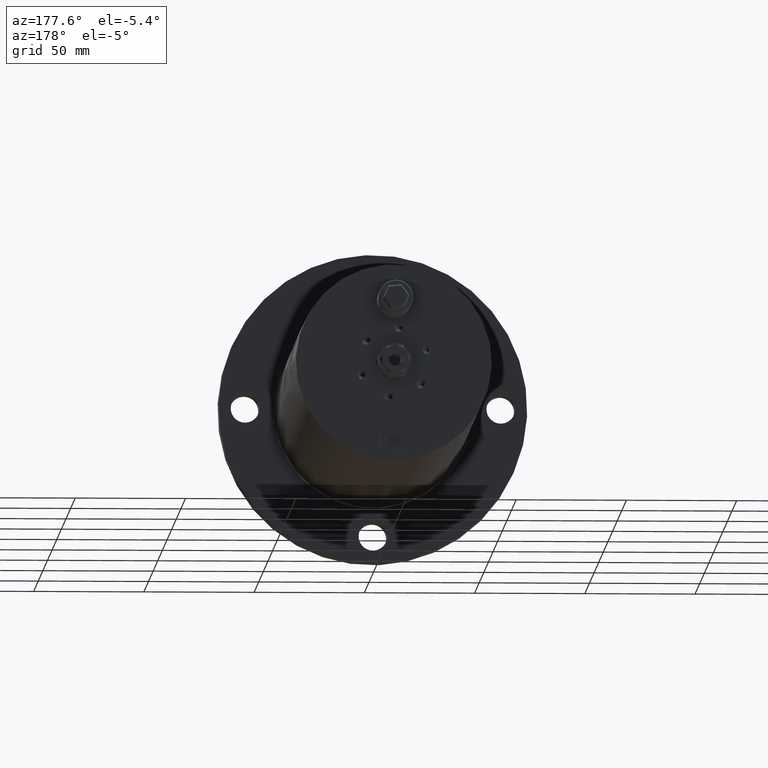
[diagram: clean part render]
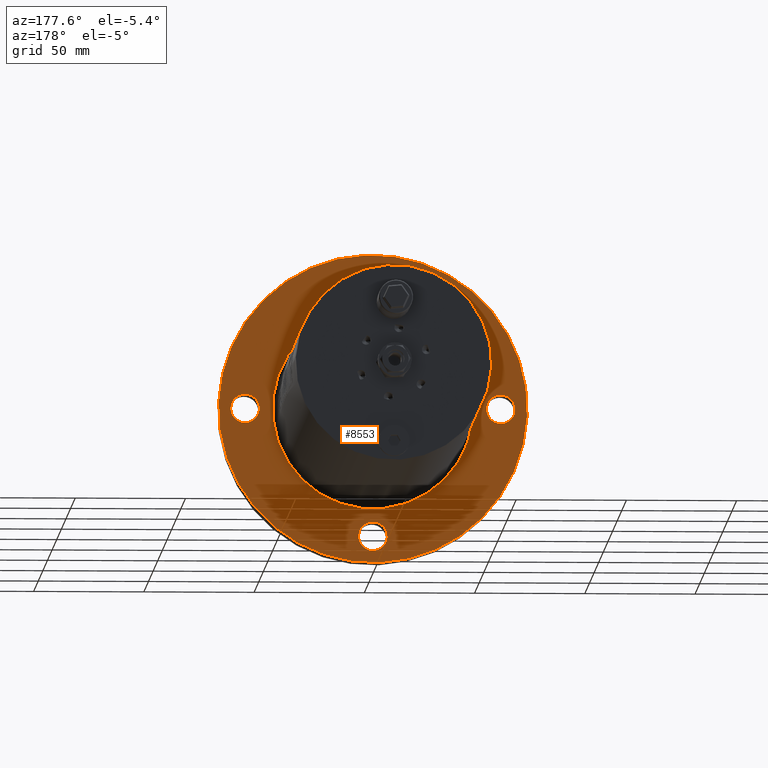
[diagram: same view with one face highlighted and labeled with its STEP entity id]
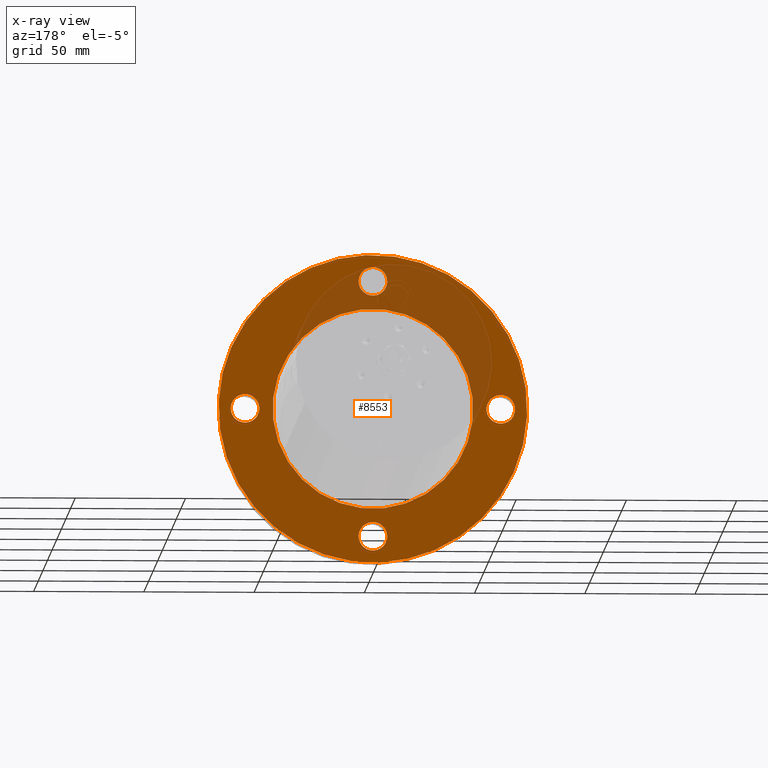
[diagram: x-ray of the same camera — body ghosted, the highlighted face saturated]
A machine part, auxiliary view. The second image highlights one B-rep face of the part: STEP entity #8553.
The next image is the same camera in x-ray: the body ghosted, the highlighted face saturated — about 22% of this face is hidden behind the body in this view.
In plain terms, the highlighted planar face has unit normal (0, 1, -0).
Its self-contained STEP definition (entity closure, byte-faithful):
#50 = ORIENTED_EDGE ( 'NONE', *, *, #286, .F. ) ;
#286 = EDGE_CURVE ( 'NONE', #27977, #27420, #34987, .T. ) ;
#388 = VERTEX_POINT ( 'NONE', #16645 ) ;
#473 = EDGE_LOOP ( 'NONE', ( #21005, #12695 ) ) ;
#733 = DIRECTION ( 'NONE',  ( -0.7071067811865529000, 2.813668456804866500E-016, -0.7071067811865422400 ) ) ;
#1062 = CARTESIAN_POINT ( 'NONE',  ( -53.40380592228689900, -6.999999999999988500, 4.596194077713342100 ) ) ;
#1196 = EDGE_CURVE ( 'NONE', #19824, #8048, #7561, .T. ) ;
#1564 = CIRCLE ( 'NONE', #15008, 45.50000000000000700 ) ;
#1895 = EDGE_CURVE ( 'NONE', #34414, #25639, #4901, .T. ) ;
#1982 = CARTESIAN_POINT ( 'NONE',  ( 62.59619407771310800, -7.000000000000040900, 4.596194077712090700 ) ) ;
#2097 = CIRCLE ( 'NONE', #3692, 6.499999999999991100 ) ;
#2374 = DIRECTION ( 'NONE',  ( -0.7071067811865533500, 2.668805347656625700E-016, -0.7071067811865418000 ) ) ;
#2727 = AXIS2_PLACEMENT_3D ( 'NONE', #17751, #32100, #733 ) ;
#2873 = DIRECTION ( 'NONE',  ( -4.382831749361561200E-016, -1.000000000000000000, 4.037036577267773700E-017 ) ) ;
#3692 = AXIS2_PLACEMENT_3D ( 'NONE', #9555, #29407, #24697 ) ;
#4862 = VERTEX_POINT ( 'NONE', #14027 ) ;
#4901 = CIRCLE ( 'NONE', #18607, 6.499999999999998200 ) ;
#5383 = DIRECTION ( 'NONE',  ( 4.382831749361561200E-016, 1.000000000000000000, -4.037036577267773700E-017 ) ) ;
#5623 = AXIS2_PLACEMENT_3D ( 'NONE', #9716, #21000, #29561 ) ;
#5908 = CARTESIAN_POINT ( 'NONE',  ( 2.919905554152300800E-013, -7.000000000000015100, -57.99999999999999300 ) ) ;
#6433 = EDGE_CURVE ( 'NONE', #8048, #19824, #28159, .T. ) ;
#6566 = CIRCLE ( 'NONE', #5623, 6.500000000000001800 ) ;
#7272 = CARTESIAN_POINT ( 'NONE',  ( 7.360797652652927500E-013, -7.000000000000011500, 57.99999999999999300 ) ) ;
#7561 = CIRCLE ( 'NONE', #12399, 70.00000000000001400 ) ;
#8048 = VERTEX_POINT ( 'NONE', #12289 ) ;
#8553 = ADVANCED_FACE ( 'NONE', ( #23761, #14445, #30392, #29513, #36126, #28643 ), #20938, .T. ) ;
#8618 = EDGE_CURVE ( 'NONE', #25639, #34414, #18886, .T. ) ;
#8933 = EDGE_CURVE ( 'NONE', #25154, #25238, #34872, .T. ) ;
#9555 = CARTESIAN_POINT ( 'NONE',  ( 2.919905554152300800E-013, -7.000000000000015100, -57.99999999999999300 ) ) ;
#9557 = ORIENTED_EDGE ( 'NONE', *, *, #8933, .F. ) ;
#9612 = CARTESIAN_POINT ( 'NONE',  ( -4.596194077712301200, -7.000000000000013300, -62.59619407771251100 ) ) ;
#9716 = CARTESIAN_POINT ( 'NONE',  ( -57.99999999999949600, -6.999999999999987600, 8.220658157602381300E-013 ) ) ;
#9845 = AXIS2_PLACEMENT_3D ( 'NONE', #12521, #32127, #15143 ) ;
#10026 = CARTESIAN_POINT ( 'NONE',  ( 5.184179920896229100E-013, -7.000000000000013300, -5.968155104952717500E-016 ) ) ;
#10270 = AXIS2_PLACEMENT_3D ( 'NONE', #23438, #34603, #26410 ) ;
#10329 = AXIS2_PLACEMENT_3D ( 'NONE', #16540, #5383, #2374 ) ;
#11294 = CARTESIAN_POINT ( 'NONE',  ( 5.184179920896229100E-013, -7.000000000000013300, -5.968155104952717500E-016 ) ) ;
#11369 = EDGE_CURVE ( 'NONE', #25238, #25154, #6566, .T. ) ;
#11595 = EDGE_LOOP ( 'NONE', ( #29329, #11602 ) ) ;
#11602 = ORIENTED_EDGE ( 'NONE', *, *, #26634, .T. ) ;
#11648 = EDGE_CURVE ( 'NONE', #13944, #12082, #2097, .T. ) ;
#11872 = EDGE_LOOP ( 'NONE', ( #9557, #20324 ) ) ;
#12082 = VERTEX_POINT ( 'NONE', #9612 ) ;
#12289 = CARTESIAN_POINT ( 'NONE',  ( 49.49747468305922400, -7.000000000000031100, 49.49747468305796600 ) ) ;
#12399 = AXIS2_PLACEMENT_3D ( 'NONE', #17171, #2873, #25605 ) ;
#12476 = EDGE_LOOP ( 'NONE', ( #33138, #33805 ) ) ;
#12521 = CARTESIAN_POINT ( 'NONE',  ( 5.184179920896229100E-013, -7.000000000000011500, -5.968155104952719400E-016 ) ) ;
#12695 = ORIENTED_EDGE ( 'NONE', *, *, #1895, .F. ) ;
#12863 = AXIS2_PLACEMENT_3D ( 'NONE', #10026, #24180, #29754 ) ;
#12918 = AXIS2_PLACEMENT_3D ( 'NONE', #7272, #27244, #29738 ) ;
#13944 = VERTEX_POINT ( 'NONE', #21728 ) ;
#14027 = CARTESIAN_POINT ( 'NONE',  ( -32.17335854398763200, -7.000000000000000900, -32.17335854398767500 ) ) ;
#14445 = FACE_BOUND ( 'NONE', #12476, .T. ) ;
#15008 = AXIS2_PLACEMENT_3D ( 'NONE', #11294, #36573, #19626 ) ;
#15143 = DIRECTION ( 'NONE',  ( 0.7071067811865527900, -2.849902853390468200E-016, 0.7071067811865422400 ) ) ;
#16540 = CARTESIAN_POINT ( 'NONE',  ( -57.99999999999949600, -6.999999999999987600, 8.220658157602381300E-013 ) ) ;
#16645 = CARTESIAN_POINT ( 'NONE',  ( 32.17335854398867000, -7.000000000000025800, 32.17335854398768200 ) ) ;
#17171 = CARTESIAN_POINT ( 'NONE',  ( 5.184179920896229100E-013, -7.000000000000011500, -5.968155104952719400E-016 ) ) ;
#17331 = DIRECTION ( 'NONE',  ( -0.7071067811865533500, 2.668805347656630100E-016, -0.7071067811865418000 ) ) ;
#17751 = CARTESIAN_POINT ( 'NONE',  ( -49.49747468305744000, -6.999999999999988500, 49.49747468305870500 ) ) ;
#18607 = AXIS2_PLACEMENT_3D ( 'NONE', #21147, #24252, #32785 ) ;
#18886 = CIRCLE ( 'NONE', #12918, 6.499999999999998200 ) ;
#19626 = DIRECTION ( 'NONE',  ( -0.7071067811865527900, 2.859434301060670700E-016, -0.7071067811865422400 ) ) ;
#19824 = VERTEX_POINT ( 'NONE', #28971 ) ;
#19867 = EDGE_CURVE ( 'NONE', #12082, #13944, #35763, .T. ) ;
#20324 = ORIENTED_EDGE ( 'NONE', *, *, #11369, .F. ) ;
#20938 = PLANE ( 'NONE',  #2727 ) ;
#21000 = DIRECTION ( 'NONE',  ( 4.382831749361561200E-016, 1.000000000000000000, -4.037036577267773700E-017 ) ) ;
#21005 = ORIENTED_EDGE ( 'NONE', *, *, #8618, .F. ) ;
#21147 = CARTESIAN_POINT ( 'NONE',  ( 7.360797652652927500E-013, -7.000000000000011500, 57.99999999999999300 ) ) ;
#21728 = CARTESIAN_POINT ( 'NONE',  ( 4.596194077712882000, -7.000000000000016900, -53.40380592228747500 ) ) ;
#22032 = CARTESIAN_POINT ( 'NONE',  ( 4.596194077713327000, -7.000000000000013300, 62.59619407771252500 ) ) ;
#22875 = CIRCLE ( 'NONE', #10270, 6.499999999999998200 ) ;
#23438 = CARTESIAN_POINT ( 'NONE',  ( 58.00000000000052600, -7.000000000000039100, -4.373434277989239200E-013 ) ) ;
#23761 = FACE_BOUND ( 'NONE', #11595, .T. ) ;
#24180 = DIRECTION ( 'NONE',  ( -4.382831749361561200E-016, -1.000000000000000000, 4.037036577267773700E-017 ) ) ;
#24252 = DIRECTION ( 'NONE',  ( 4.382831749361561200E-016, 1.000000000000000000, -4.037036577267773700E-017 ) ) ;
#24428 = EDGE_CURVE ( 'NONE', #4862, #388, #1564, .T. ) ;
#24474 = DIRECTION ( 'NONE',  ( 4.382831749361561200E-016, 1.000000000000000000, -4.037036577267773700E-017 ) ) ;
#24530 = AXIS2_PLACEMENT_3D ( 'NONE', #24837, #24474, #36076 ) ;
#24697 = DIRECTION ( 'NONE',  ( -0.7071067811865533500, 2.668805347656630100E-016, -0.7071067811865418000 ) ) ;
#24837 = CARTESIAN_POINT ( 'NONE',  ( 58.00000000000052600, -7.000000000000039100, -4.373434277989239200E-013 ) ) ;
#25154 = VERTEX_POINT ( 'NONE', #1062 ) ;
#25238 = VERTEX_POINT ( 'NONE', #35286 ) ;
#25605 = DIRECTION ( 'NONE',  ( 0.7071067811865527900, -2.849902853390468200E-016, 0.7071067811865422400 ) ) ;
#25639 = VERTEX_POINT ( 'NONE', #22032 ) ;
#25765 = DIRECTION ( 'NONE',  ( 4.382831749361561200E-016, 1.000000000000000000, -4.037036577267773700E-017 ) ) ;
#26229 = EDGE_CURVE ( 'NONE', #27420, #27977, #22875, .T. ) ;
#26372 = AXIS2_PLACEMENT_3D ( 'NONE', #5908, #25765, #17331 ) ;
#26410 = DIRECTION ( 'NONE',  ( -0.7071067811865527900, 2.668805347656627200E-016, -0.7071067811865422400 ) ) ;
#26634 = EDGE_CURVE ( 'NONE', #388, #4862, #28648, .T. ) ;
#27206 = ORIENTED_EDGE ( 'NONE', *, *, #6433, .F. ) ;
#27244 = DIRECTION ( 'NONE',  ( 4.382831749361561200E-016, 1.000000000000000000, -4.037036577267773700E-017 ) ) ;
#27420 = VERTEX_POINT ( 'NONE', #1982 ) ;
#27977 = VERTEX_POINT ( 'NONE', #34794 ) ;
#28159 = CIRCLE ( 'NONE', #9845, 70.00000000000001400 ) ;
#28643 = FACE_OUTER_BOUND ( 'NONE', #34166, .T. ) ;
#28648 = CIRCLE ( 'NONE', #12863, 45.50000000000000700 ) ;
#28971 = CARTESIAN_POINT ( 'NONE',  ( -49.49747468305819400, -6.999999999999991100, -49.49747468305795900 ) ) ;
#29329 = ORIENTED_EDGE ( 'NONE', *, *, #24428, .T. ) ;
#29407 = DIRECTION ( 'NONE',  ( 4.382831749361561200E-016, 1.000000000000000000, -4.037036577267773700E-017 ) ) ;
#29430 = CARTESIAN_POINT ( 'NONE',  ( -4.596194077711858000, -7.000000000000009800, 53.40380592228747500 ) ) ;
#29513 = FACE_BOUND ( 'NONE', #473, .T. ) ;
#29561 = DIRECTION ( 'NONE',  ( -0.7071067811865533500, 2.668805347656625700E-016, -0.7071067811865418000 ) ) ;
#29738 = DIRECTION ( 'NONE',  ( -0.7071067811865530100, 2.668805347656627200E-016, -0.7071067811865419100 ) ) ;
#29754 = DIRECTION ( 'NONE',  ( -0.7071067811865527900, 2.859434301060670700E-016, -0.7071067811865422400 ) ) ;
#30204 = EDGE_LOOP ( 'NONE', ( #35648, #50 ) ) ;
#30392 = FACE_BOUND ( 'NONE', #11872, .T. ) ;
#32100 = DIRECTION ( 'NONE',  ( 4.382831749361561200E-016, 1.000000000000000000, -4.037036577267775600E-017 ) ) ;
#32127 = DIRECTION ( 'NONE',  ( -4.382831749361561200E-016, -1.000000000000000000, 4.037036577267773700E-017 ) ) ;
#32785 = DIRECTION ( 'NONE',  ( -0.7071067811865530100, 2.668805347656627200E-016, -0.7071067811865419100 ) ) ;
#33138 = ORIENTED_EDGE ( 'NONE', *, *, #11648, .F. ) ;
#33805 = ORIENTED_EDGE ( 'NONE', *, *, #19867, .F. ) ;
#34166 = EDGE_LOOP ( 'NONE', ( #27206, #35285 ) ) ;
#34414 = VERTEX_POINT ( 'NONE', #29430 ) ;
#34603 = DIRECTION ( 'NONE',  ( 4.382831749361561200E-016, 1.000000000000000000, -4.037036577267773700E-017 ) ) ;
#34794 = CARTESIAN_POINT ( 'NONE',  ( 53.40380592228792300, -7.000000000000037300, -4.596194077712957500 ) ) ;
#34872 = CIRCLE ( 'NONE', #10329, 6.500000000000001800 ) ;
#34987 = CIRCLE ( 'NONE', #24530, 6.499999999999998200 ) ;
#35285 = ORIENTED_EDGE ( 'NONE', *, *, #1196, .F. ) ;
#35286 = CARTESIAN_POINT ( 'NONE',  ( -62.59619407771207700, -6.999999999999985800, -4.596194077711705200 ) ) ;
#35648 = ORIENTED_EDGE ( 'NONE', *, *, #26229, .F. ) ;
#35763 = CIRCLE ( 'NONE', #26372, 6.499999999999991100 ) ;
#36076 = DIRECTION ( 'NONE',  ( -0.7071067811865527900, 2.668805347656627200E-016, -0.7071067811865422400 ) ) ;
#36126 = FACE_BOUND ( 'NONE', #30204, .T. ) ;
#36573 = DIRECTION ( 'NONE',  ( -4.382831749361561200E-016, -1.000000000000000000, 4.037036577267773700E-017 ) ) ;